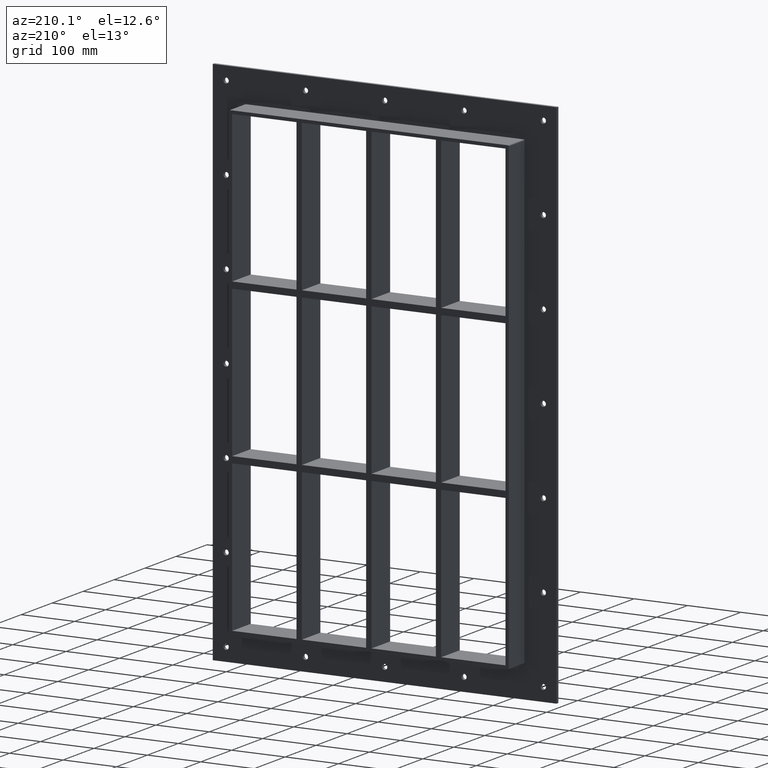
[diagram: clean part render]
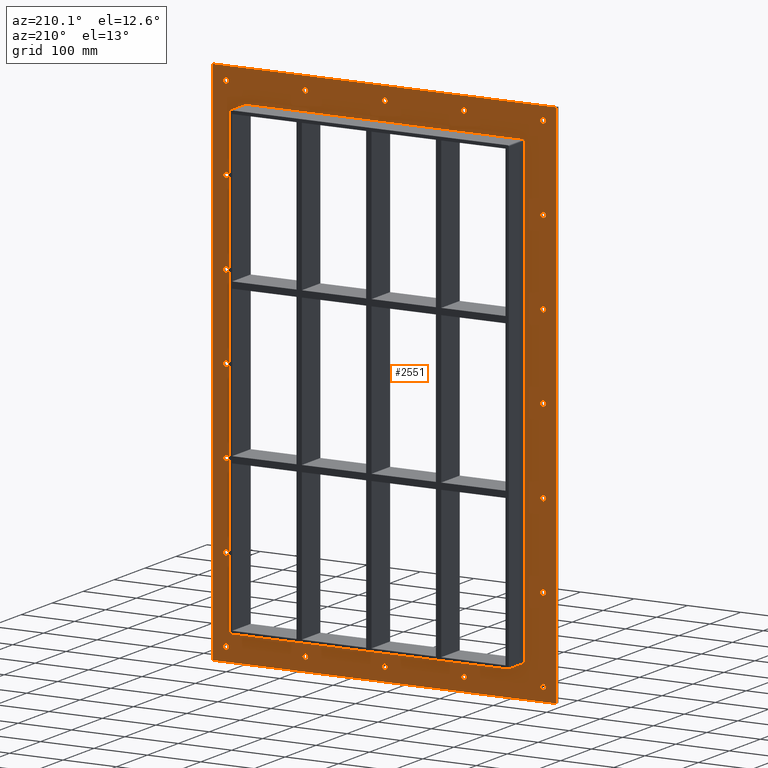
[diagram: same view with one face highlighted and labeled with its STEP entity id]
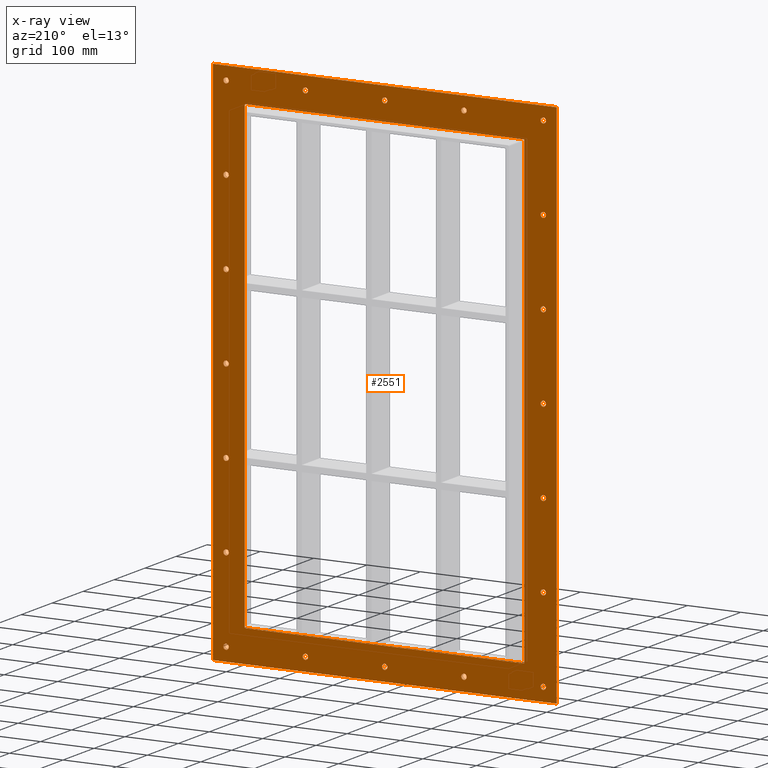
[diagram: x-ray of the same camera — body ghosted, the highlighted face saturated]
A machine part, auxiliary view. The second image highlights one B-rep face of the part: STEP entity #2551.
The next image is the same camera in x-ray: the body ghosted, the highlighted face saturated — about 0% of this face is hidden behind the body in this view.
In plain terms, the highlighted planar face has unit normal (0, 1, 0).
Its self-contained STEP definition (entity closure, byte-faithful):
#73=CARTESIAN_POINT('',(-302.00000000000011,5.999999999999943,-470.00000000000011));
#74=VERTEX_POINT('',#73);
#75=CARTESIAN_POINT('',(-297.00000000000011,5.999999999999943,-470.00000000000011));
#76=DIRECTION('',(0.0,-1.0,0.0));
#77=DIRECTION('',(1.0,0.0,0.0));
#78=AXIS2_PLACEMENT_3D('',#75,#76,#77);
#79=CIRCLE('',#78,5.0);
#80=EDGE_CURVE('',#74,#74,#79,.T.);
#101=CARTESIAN_POINT('',(291.99999999999994,5.999999999999943,-313.30000000000013));
#102=VERTEX_POINT('',#101);
#103=CARTESIAN_POINT('',(296.99999999999994,5.999999999999943,-313.30000000000013));
#104=DIRECTION('',(0.0,-1.0,0.0));
#105=DIRECTION('',(1.0,0.0,0.0));
#106=AXIS2_PLACEMENT_3D('',#103,#104,#105);
#107=CIRCLE('',#106,5.0);
#108=EDGE_CURVE('',#102,#102,#107,.T.);
#129=CARTESIAN_POINT('',(-302.00000000000011,5.999999999999943,-313.30000000000013));
#130=VERTEX_POINT('',#129);
#131=CARTESIAN_POINT('',(-297.00000000000011,5.999999999999943,-313.30000000000013));
#132=DIRECTION('',(0.0,-1.0,0.0));
#133=DIRECTION('',(1.0,0.0,0.0));
#134=AXIS2_PLACEMENT_3D('',#131,#132,#133);
#135=CIRCLE('',#134,5.0);
#136=EDGE_CURVE('',#130,#130,#135,.T.);
#157=CARTESIAN_POINT('',(291.99999999999994,5.999999999999943,-156.60000000000016));
#158=VERTEX_POINT('',#157);
#159=CARTESIAN_POINT('',(296.99999999999994,5.999999999999943,-156.60000000000016));
#160=DIRECTION('',(0.0,-1.0,0.0));
#161=DIRECTION('',(1.0,0.0,0.0));
#162=AXIS2_PLACEMENT_3D('',#159,#160,#161);
#163=CIRCLE('',#162,5.0);
#164=EDGE_CURVE('',#158,#158,#163,.T.);
#185=CARTESIAN_POINT('',(-302.00000000000011,5.999999999999943,-156.60000000000016));
#186=VERTEX_POINT('',#185);
#187=CARTESIAN_POINT('',(-297.00000000000011,5.999999999999943,-156.60000000000016));
#188=DIRECTION('',(0.0,-1.0,0.0));
#189=DIRECTION('',(1.0,0.0,0.0));
#190=AXIS2_PLACEMENT_3D('',#187,#188,#189);
#191=CIRCLE('',#190,5.0);
#192=EDGE_CURVE('',#186,#186,#191,.T.);
#213=CARTESIAN_POINT('',(291.99999999999994,5.999999999999943,0.099999999999856));
#214=VERTEX_POINT('',#213);
#215=CARTESIAN_POINT('',(296.99999999999994,5.999999999999943,0.099999999999856));
#216=DIRECTION('',(0.0,-1.0,0.0));
#217=DIRECTION('',(1.0,0.0,0.0));
#218=AXIS2_PLACEMENT_3D('',#215,#216,#217);
#219=CIRCLE('',#218,5.0);
#220=EDGE_CURVE('',#214,#214,#219,.T.);
#241=CARTESIAN_POINT('',(-302.00000000000011,5.999999999999943,0.099999999999856));
#242=VERTEX_POINT('',#241);
#243=CARTESIAN_POINT('',(-297.00000000000011,5.999999999999943,0.099999999999856));
#244=DIRECTION('',(0.0,-1.0,0.0));
#245=DIRECTION('',(1.0,0.0,0.0));
#246=AXIS2_PLACEMENT_3D('',#243,#244,#245);
#247=CIRCLE('',#246,5.0);
#248=EDGE_CURVE('',#242,#242,#247,.T.);
#269=CARTESIAN_POINT('',(291.99999999999994,5.999999999999943,156.79999999999981));
#270=VERTEX_POINT('',#269);
#271=CARTESIAN_POINT('',(296.99999999999994,5.999999999999943,156.79999999999981));
#272=DIRECTION('',(0.0,-1.0,0.0));
#273=DIRECTION('',(1.0,0.0,0.0));
#274=AXIS2_PLACEMENT_3D('',#271,#272,#273);
#275=CIRCLE('',#274,5.0);
#276=EDGE_CURVE('',#270,#270,#275,.T.);
#297=CARTESIAN_POINT('',(-302.00000000000011,5.999999999999943,156.79999999999981));
#298=VERTEX_POINT('',#297);
#299=CARTESIAN_POINT('',(-297.00000000000011,5.999999999999943,156.79999999999981));
#300=DIRECTION('',(0.0,-1.0,0.0));
#301=DIRECTION('',(1.0,0.0,0.0));
#302=AXIS2_PLACEMENT_3D('',#299,#300,#301);
#303=CIRCLE('',#302,5.0);
#304=EDGE_CURVE('',#298,#298,#303,.T.);
#325=CARTESIAN_POINT('',(291.99999999999994,5.999999999999943,313.49999999999977));
#326=VERTEX_POINT('',#325);
#327=CARTESIAN_POINT('',(296.99999999999994,5.999999999999943,313.49999999999977));
#328=DIRECTION('',(0.0,-1.0,0.0));
#329=DIRECTION('',(1.0,0.0,0.0));
#330=AXIS2_PLACEMENT_3D('',#327,#328,#329);
#331=CIRCLE('',#330,5.0);
#332=EDGE_CURVE('',#326,#326,#331,.T.);
#353=CARTESIAN_POINT('',(-302.00000000000011,5.999999999999943,313.49999999999977));
#354=VERTEX_POINT('',#353);
#355=CARTESIAN_POINT('',(-297.00000000000011,5.999999999999943,313.49999999999977));
#356=DIRECTION('',(0.0,-1.0,0.0));
#357=DIRECTION('',(1.0,0.0,0.0));
#358=AXIS2_PLACEMENT_3D('',#355,#356,#357);
#359=CIRCLE('',#358,5.0);
#360=EDGE_CURVE('',#354,#354,#359,.T.);
#381=CARTESIAN_POINT('',(-153.50000000000011,5.999999999999943,470.19999999999982));
#382=VERTEX_POINT('',#381);
#383=CARTESIAN_POINT('',(-148.50000000000011,5.999999999999943,470.19999999999982));
#384=DIRECTION('',(0.0,-1.0,0.0));
#385=DIRECTION('',(1.0,0.0,0.0));
#386=AXIS2_PLACEMENT_3D('',#383,#384,#385);
#387=CIRCLE('',#386,5.0);
#388=EDGE_CURVE('',#382,#382,#387,.T.);
#409=CARTESIAN_POINT('',(-153.50000000000017,5.999999999999943,-470.00000000000011));
#410=VERTEX_POINT('',#409);
#411=CARTESIAN_POINT('',(-148.50000000000017,5.999999999999943,-470.00000000000011));
#412=DIRECTION('',(0.0,-1.0,0.0));
#413=DIRECTION('',(1.0,0.0,0.0));
#414=AXIS2_PLACEMENT_3D('',#411,#412,#413);
#415=CIRCLE('',#414,5.0);
#416=EDGE_CURVE('',#410,#410,#415,.T.);
#437=CARTESIAN_POINT('',(-5.000000000000107,5.999999999999943,470.19999999999982));
#438=VERTEX_POINT('',#437);
#439=CARTESIAN_POINT('',(-1.065814E-013,5.999999999999943,470.19999999999982));
#440=DIRECTION('',(0.0,-1.0,0.0));
#441=DIRECTION('',(1.0,0.0,0.0));
#442=AXIS2_PLACEMENT_3D('',#439,#440,#441);
#443=CIRCLE('',#442,5.0);
#444=EDGE_CURVE('',#438,#438,#443,.T.);
#465=CARTESIAN_POINT('',(-5.000000000000142,5.999999999999943,-470.00000000000011));
#466=VERTEX_POINT('',#465);
#467=CARTESIAN_POINT('',(-1.421085E-013,5.999999999999943,-470.00000000000011));
#468=DIRECTION('',(0.0,-1.0,0.0));
#469=DIRECTION('',(1.0,0.0,0.0));
#470=AXIS2_PLACEMENT_3D('',#467,#468,#469);
#471=CIRCLE('',#470,5.0);
#472=EDGE_CURVE('',#466,#466,#471,.T.);
#493=CARTESIAN_POINT('',(143.49999999999991,5.999999999999943,470.19999999999982));
#494=VERTEX_POINT('',#493);
#495=CARTESIAN_POINT('',(148.49999999999991,5.999999999999943,470.19999999999982));
#496=DIRECTION('',(0.0,-1.0,0.0));
#497=DIRECTION('',(1.0,0.0,0.0));
#498=AXIS2_PLACEMENT_3D('',#495,#496,#497);
#499=CIRCLE('',#498,5.0);
#500=EDGE_CURVE('',#494,#494,#499,.T.);
#521=CARTESIAN_POINT('',(143.49999999999989,5.999999999999943,-470.00000000000011));
#522=VERTEX_POINT('',#521);
#523=CARTESIAN_POINT('',(148.49999999999989,5.999999999999943,-470.00000000000011));
#524=DIRECTION('',(0.0,-1.0,0.0));
#525=DIRECTION('',(1.0,0.0,0.0));
#526=AXIS2_PLACEMENT_3D('',#523,#524,#525);
#527=CIRCLE('',#526,5.0);
#528=EDGE_CURVE('',#522,#522,#527,.T.);
#549=CARTESIAN_POINT('',(291.99999999999989,5.999999999999943,-470.00000000000011));
#550=VERTEX_POINT('',#549);
#551=CARTESIAN_POINT('',(296.99999999999989,5.999999999999943,-470.00000000000011));
#552=DIRECTION('',(0.0,-1.0,0.0));
#553=DIRECTION('',(1.0,0.0,0.0));
#554=AXIS2_PLACEMENT_3D('',#551,#552,#553);
#555=CIRCLE('',#554,5.0);
#556=EDGE_CURVE('',#550,#550,#555,.T.);
#577=CARTESIAN_POINT('',(-302.00000000000011,5.999999999999943,470.19999999999982));
#578=VERTEX_POINT('',#577);
#579=CARTESIAN_POINT('',(-297.00000000000011,5.999999999999943,470.19999999999982));
#580=DIRECTION('',(0.0,-1.0,0.0));
#581=DIRECTION('',(1.0,0.0,0.0));
#582=AXIS2_PLACEMENT_3D('',#579,#580,#581);
#583=CIRCLE('',#582,5.0);
#584=EDGE_CURVE('',#578,#578,#583,.T.);
#605=CARTESIAN_POINT('',(291.99999999999994,5.999999999999943,470.19999999999982));
#606=VERTEX_POINT('',#605);
#607=CARTESIAN_POINT('',(296.99999999999994,5.999999999999943,470.19999999999982));
#608=DIRECTION('',(0.0,-1.0,0.0));
#609=DIRECTION('',(1.0,0.0,0.0));
#610=AXIS2_PLACEMENT_3D('',#607,#608,#609);
#611=CIRCLE('',#610,5.0);
#612=EDGE_CURVE('',#606,#606,#611,.T.);
#2382=CARTESIAN_POINT('',(-2.087274E-014,6.000000000000001,0.0));
#2383=DIRECTION('',(0.0,1.0,0.0));
#2384=DIRECTION('',(0.0,0.0,1.0));
#2385=AXIS2_PLACEMENT_3D('',#2382,#2383,#2384);
#2386=PLANE('',#2385);
#2387=CARTESIAN_POINT('',(-322.0,6.000000000000001,495.00000000000006));
#2388=VERTEX_POINT('',#2387);
#2389=CARTESIAN_POINT('',(322.0,6.000000000000001,495.00000000000006));
#2390=VERTEX_POINT('',#2389);
#2391=CARTESIAN_POINT('',(-322.0,6.000000000000001,495.00000000000006));
#2392=DIRECTION('',(1.0,0.0,0.0));
#2393=VECTOR('',#2392,644.0);
#2394=LINE('',#2391,#2393);
#2395=EDGE_CURVE('',#2388,#2390,#2394,.T.);
#2396=ORIENTED_EDGE('',*,*,#2395,.T.);
#2397=CARTESIAN_POINT('',(322.0,6.000000000000001,-495.00000000000006));
#2398=VERTEX_POINT('',#2397);
#2399=CARTESIAN_POINT('',(321.99999999999994,6.000000000000001,495.00000000000006));
#2400=DIRECTION('',(0.0,0.0,-1.0));
#2401=VECTOR('',#2400,990.00000000000011);
#2402=LINE('',#2399,#2401);
#2403=EDGE_CURVE('',#2390,#2398,#2402,.T.);
#2404=ORIENTED_EDGE('',*,*,#2403,.T.);
#2405=CARTESIAN_POINT('',(-322.0,6.000000000000001,-495.00000000000006));
#2406=VERTEX_POINT('',#2405);
#2407=CARTESIAN_POINT('',(321.99999999999994,6.000000000000001,-495.00000000000006));
#2408=DIRECTION('',(-1.0,0.0,0.0));
#2409=VECTOR('',#2408,644.0);
#2410=LINE('',#2407,#2409);
#2411=EDGE_CURVE('',#2398,#2406,#2410,.T.);
#2412=ORIENTED_EDGE('',*,*,#2411,.T.);
#2413=CARTESIAN_POINT('',(-322.0,6.000000000000001,-495.00000000000006));
#2414=DIRECTION('',(0.0,0.0,1.0));
#2415=VECTOR('',#2414,990.00000000000011);
#2416=LINE('',#2413,#2415);
#2417=EDGE_CURVE('',#2406,#2388,#2416,.T.);
#2418=ORIENTED_EDGE('',*,*,#2417,.T.);
#2419=EDGE_LOOP('',(#2396,#2404,#2412,#2418));
#2420=FACE_OUTER_BOUND('',#2419,.T.);
#2421=ORIENTED_EDGE('',*,*,#80,.T.);
#2422=EDGE_LOOP('',(#2421));
#2423=FACE_BOUND('',#2422,.T.);
#2424=ORIENTED_EDGE('',*,*,#108,.T.);
#2425=EDGE_LOOP('',(#2424));
#2426=FACE_BOUND('',#2425,.T.);
#2427=ORIENTED_EDGE('',*,*,#136,.T.);
#2428=EDGE_LOOP('',(#2427));
#2429=FACE_BOUND('',#2428,.T.);
#2430=ORIENTED_EDGE('',*,*,#164,.T.);
#2431=EDGE_LOOP('',(#2430));
#2432=FACE_BOUND('',#2431,.T.);
#2433=ORIENTED_EDGE('',*,*,#192,.T.);
#2434=EDGE_LOOP('',(#2433));
#2435=FACE_BOUND('',#2434,.T.);
#2436=ORIENTED_EDGE('',*,*,#220,.T.);
#2437=EDGE_LOOP('',(#2436));
#2438=FACE_BOUND('',#2437,.T.);
#2439=ORIENTED_EDGE('',*,*,#248,.T.);
#2440=EDGE_LOOP('',(#2439));
#2441=FACE_BOUND('',#2440,.T.);
#2442=ORIENTED_EDGE('',*,*,#276,.T.);
#2443=EDGE_LOOP('',(#2442));
#2444=FACE_BOUND('',#2443,.T.);
#2445=ORIENTED_EDGE('',*,*,#304,.T.);
#2446=EDGE_LOOP('',(#2445));
#2447=FACE_BOUND('',#2446,.T.);
#2448=ORIENTED_EDGE('',*,*,#332,.T.);
#2449=EDGE_LOOP('',(#2448));
#2450=FACE_BOUND('',#2449,.T.);
#2451=ORIENTED_EDGE('',*,*,#360,.T.);
#2452=EDGE_LOOP('',(#2451));
#2453=FACE_BOUND('',#2452,.T.);
#2454=ORIENTED_EDGE('',*,*,#388,.T.);
#2455=EDGE_LOOP('',(#2454));
#2456=FACE_BOUND('',#2455,.T.);
#2457=ORIENTED_EDGE('',*,*,#416,.T.);
#2458=EDGE_LOOP('',(#2457));
#2459=FACE_BOUND('',#2458,.T.);
#2460=ORIENTED_EDGE('',*,*,#444,.T.);
#2461=EDGE_LOOP('',(#2460));
#2462=FACE_BOUND('',#2461,.T.);
#2463=ORIENTED_EDGE('',*,*,#472,.T.);
#2464=EDGE_LOOP('',(#2463));
#2465=FACE_BOUND('',#2464,.T.);
#2466=ORIENTED_EDGE('',*,*,#500,.T.);
#2467=EDGE_LOOP('',(#2466));
#2468=FACE_BOUND('',#2467,.T.);
#2469=ORIENTED_EDGE('',*,*,#528,.T.);
#2470=EDGE_LOOP('',(#2469));
#2471=FACE_BOUND('',#2470,.T.);
#2472=ORIENTED_EDGE('',*,*,#556,.T.);
#2473=EDGE_LOOP('',(#2472));
#2474=FACE_BOUND('',#2473,.T.);
#2475=ORIENTED_EDGE('',*,*,#584,.T.);
#2476=EDGE_LOOP('',(#2475));
#2477=FACE_BOUND('',#2476,.T.);
#2478=ORIENTED_EDGE('',*,*,#612,.T.);
#2479=EDGE_LOOP('',(#2478));
#2480=FACE_BOUND('',#2479,.T.);
#2481=CARTESIAN_POINT('',(-262.0,6.000000000000001,433.0));
#2482=VERTEX_POINT('',#2481);
#2483=CARTESIAN_POINT('',(-260.0,6.000000000000001,435.0));
#2484=VERTEX_POINT('',#2483);
#2485=CARTESIAN_POINT('',(-260.0,6.000000000000001,433.0));
#2486=DIRECTION('',(0.0,1.0,0.0));
#2487=DIRECTION('',(-0.707106781186548,0.0,0.707106781186548));
#2488=AXIS2_PLACEMENT_3D('',#2485,#2486,#2487);
#2489=CIRCLE('',#2488,2.0);
#2490=EDGE_CURVE('',#2482,#2484,#2489,.T.);
#2491=ORIENTED_EDGE('',*,*,#2490,.F.);
#2492=CARTESIAN_POINT('',(-262.0,6.000000000000001,-433.00000000000011));
#2493=VERTEX_POINT('',#2492);
#2494=CARTESIAN_POINT('',(-262.0,6.000000000000001,-433.00000000000011));
#2495=DIRECTION('',(0.0,0.0,1.0));
#2496=VECTOR('',#2495,866.00000000000023);
#2497=LINE('',#2494,#2496);
#2498=EDGE_CURVE('',#2493,#2482,#2497,.T.);
#2499=ORIENTED_EDGE('',*,*,#2498,.F.);
#2500=CARTESIAN_POINT('',(-260.0,6.000000000000001,-435.00000000000011));
#2501=VERTEX_POINT('',#2500);
#2502=CARTESIAN_POINT('',(-260.0,6.000000000000001,-433.00000000000011));
#2503=DIRECTION('',(0.0,1.0,0.0));
#2504=DIRECTION('',(-0.707106781186548,0.0,-0.707106781186548));
#2505=AXIS2_PLACEMENT_3D('',#2502,#2503,#2504);
#2506=CIRCLE('',#2505,2.0);
#2507=EDGE_CURVE('',#2501,#2493,#2506,.T.);
#2508=ORIENTED_EDGE('',*,*,#2507,.F.);
#2509=CARTESIAN_POINT('',(260.0,6.000000000000001,-435.00000000000011));
#2510=VERTEX_POINT('',#2509);
#2511=CARTESIAN_POINT('',(260.0,6.000000000000001,-435.00000000000011));
#2512=DIRECTION('',(-1.0,0.0,0.0));
#2513=VECTOR('',#2512,520.0);
#2514=LINE('',#2511,#2513);
#2515=EDGE_CURVE('',#2510,#2501,#2514,.T.);
#2516=ORIENTED_EDGE('',*,*,#2515,.F.);
#2517=CARTESIAN_POINT('',(262.0,6.000000000000001,-433.00000000000011));
#2518=VERTEX_POINT('',#2517);
#2519=CARTESIAN_POINT('',(260.0,6.000000000000001,-433.00000000000011));
#2520=DIRECTION('',(0.0,1.0,0.0));
#2521=DIRECTION('',(0.707106781186548,0.0,-0.707106781186548));
#2522=AXIS2_PLACEMENT_3D('',#2519,#2520,#2521);
#2523=CIRCLE('',#2522,2.0);
#2524=EDGE_CURVE('',#2518,#2510,#2523,.T.);
#2525=ORIENTED_EDGE('',*,*,#2524,.F.);
#2526=CARTESIAN_POINT('',(262.0,6.000000000000001,433.0));
#2527=VERTEX_POINT('',#2526);
#2528=CARTESIAN_POINT('',(262.0,6.000000000000001,433.0));
#2529=DIRECTION('',(0.0,0.0,-1.0));
#2530=VECTOR('',#2529,866.00000000000011);
#2531=LINE('',#2528,#2530);
#2532=EDGE_CURVE('',#2527,#2518,#2531,.T.);
#2533=ORIENTED_EDGE('',*,*,#2532,.F.);
#2534=CARTESIAN_POINT('',(260.0,6.000000000000001,435.0));
#2535=VERTEX_POINT('',#2534);
#2536=CARTESIAN_POINT('',(260.0,6.000000000000001,433.0));
#2537=DIRECTION('',(0.0,1.0,0.0));
#2538=DIRECTION('',(0.707106781186548,0.0,0.707106781186548));
#2539=AXIS2_PLACEMENT_3D('',#2536,#2537,#2538);
#2540=CIRCLE('',#2539,2.0);
#2541=EDGE_CURVE('',#2535,#2527,#2540,.T.);
#2542=ORIENTED_EDGE('',*,*,#2541,.F.);
#2543=CARTESIAN_POINT('',(-260.0,6.000000000000001,435.0));
#2544=DIRECTION('',(1.0,0.0,0.0));
#2545=VECTOR('',#2544,520.0);
#2546=LINE('',#2543,#2545);
#2547=EDGE_CURVE('',#2484,#2535,#2546,.T.);
#2548=ORIENTED_EDGE('',*,*,#2547,.F.);
#2549=EDGE_LOOP('',(#2491,#2499,#2508,#2516,#2525,#2533,#2542,#2548));
#2550=FACE_BOUND('',#2549,.T.);
#2551=ADVANCED_FACE('',(#2420,#2423,#2426,#2429,#2432,#2435,#2438,#2441,#2444,#2447,#2450,#2453,#2456,#2459,#2462,#2465,#2468,#2471,#2474,#2477,#2480,#2550),#2386,.T.);